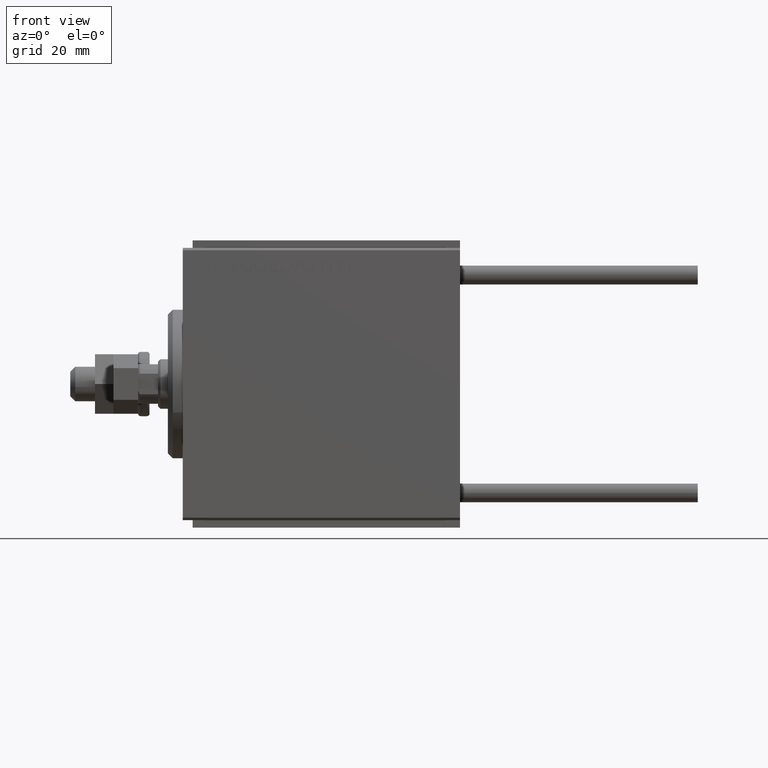
[diagram: clean part render]
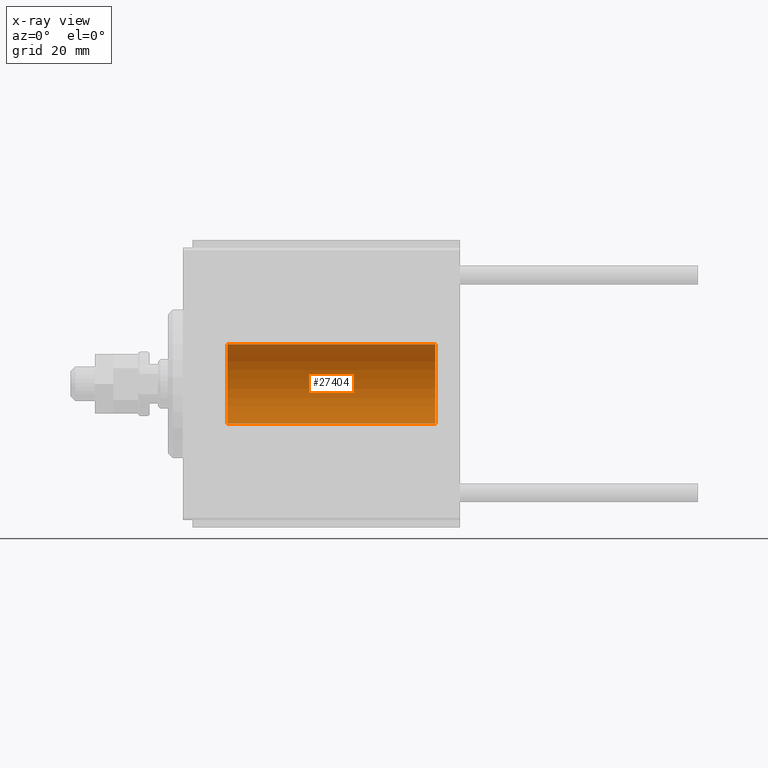
[diagram: x-ray — body ghosted, one internal face saturated and labeled with its STEP entity id]
A machine part, front view, then the same camera in x-ray: the body is ghosted and one INTERNAL B-rep face — a face not visible from any outside direction — is saturated and labeled: STEP entity #27404.
In plain terms, the highlighted cylindrical surface (partial cylindrical patch) has radius 8 mm, axis along (-1, -0, -0).
Its self-contained STEP definition (entity closure, byte-faithful):
#140 = DIRECTION ( 'NONE',  ( -1.000000000000000000, -0.000000000000000000, -0.000000000000000000 ) ) ;
#1160 = DIRECTION ( 'NONE',  ( -1.000000000000000000, 0.000000000000000000, 0.000000000000000000 ) ) ;
#1403 = DIRECTION ( 'NONE',  ( -1.000000000000000000, -0.000000000000000000, -0.000000000000000000 ) ) ;
#2342 = CARTESIAN_POINT ( 'NONE',  ( 51.00000000000000000, 0.000000000000000000, 0.000000000000000000 ) ) ;
#2371 = VERTEX_POINT ( 'NONE', #39339 ) ;
#3090 = VERTEX_POINT ( 'NONE', #7339 ) ;
#7339 = CARTESIAN_POINT ( 'NONE',  ( 51.00000000000000000, 0.000000000000000000, 7.999999999999998224 ) ) ;
#9039 = ORIENTED_EDGE ( 'NONE', *, *, #11914, .T. ) ;
#10203 = DIRECTION ( 'NONE',  ( 0.000000000000000000, 0.000000000000000000, 1.000000000000000000 ) ) ;
#11914 = EDGE_CURVE ( 'NONE', #3090, #31441, #43828, .T. ) ;
#13249 = ORIENTED_EDGE ( 'NONE', *, *, #36979, .F. ) ;
#13821 = VECTOR ( 'NONE', #1403, 1000.000000000000000 ) ;
#14219 = CIRCLE ( 'NONE', #36945, 7.999999999999998224 ) ;
#16156 = DIRECTION ( 'NONE',  ( -1.000000000000000000, -0.000000000000000000, -0.000000000000000000 ) ) ;
#16641 = DIRECTION ( 'NONE',  ( 0.000000000000000000, 0.000000000000000000, 1.000000000000000000 ) ) ;
#17421 = EDGE_LOOP ( 'NONE', ( #25514, #13249, #9039, #25718 ) ) ;
#18927 = FACE_OUTER_BOUND ( 'NONE', #17421, .T. ) ;
#19958 = LINE ( 'NONE', #35453, #38657 ) ;
#21625 = DIRECTION ( 'NONE',  ( -1.000000000000000000, 0.000000000000000000, 0.000000000000000000 ) ) ;
#23060 = EDGE_CURVE ( 'NONE', #31441, #2371, #38440, .T. ) ;
#23865 = CARTESIAN_POINT ( 'NONE',  ( 9.000000000000001776, 0.000000000000000000, 7.999999999999998224 ) ) ;
#25514 = ORIENTED_EDGE ( 'NONE', *, *, #39747, .F. ) ;
#25718 = ORIENTED_EDGE ( 'NONE', *, *, #23060, .T. ) ;
#27404 = ADVANCED_FACE ( 'NONE', ( #18927 ), #34415, .F. ) ;
#27535 = DIRECTION ( 'NONE',  ( 0.000000000000000000, 0.000000000000000000, 1.000000000000000000 ) ) ;
#30300 = AXIS2_PLACEMENT_3D ( 'NONE', #39772, #1160, #16641 ) ;
#31441 = VERTEX_POINT ( 'NONE', #23865 ) ;
#33712 = AXIS2_PLACEMENT_3D ( 'NONE', #49933, #140, #27535 ) ;
#34415 = CYLINDRICAL_SURFACE ( 'NONE', #33712, 7.999999999999998224 ) ;
#35453 = CARTESIAN_POINT ( 'NONE',  ( 51.00000000000000000, 9.797174393178823685E-16, -7.999999999999998224 ) ) ;
#36945 = AXIS2_PLACEMENT_3D ( 'NONE', #2342, #21625, #10203 ) ;
#36979 = EDGE_CURVE ( 'NONE', #3090, #38699, #14219, .T. ) ;
#38440 = CIRCLE ( 'NONE', #30300, 7.999999999999998224 ) ;
#38657 = VECTOR ( 'NONE', #16156, 1000.000000000000000 ) ;
#38699 = VERTEX_POINT ( 'NONE', #40532 ) ;
#39339 = CARTESIAN_POINT ( 'NONE',  ( 9.000000000000001776, 9.797174393178823685E-16, -7.999999999999998224 ) ) ;
#39530 = CARTESIAN_POINT ( 'NONE',  ( 51.00000000000000000, 0.000000000000000000, 7.999999999999998224 ) ) ;
#39747 = EDGE_CURVE ( 'NONE', #38699, #2371, #19958, .T. ) ;
#39772 = CARTESIAN_POINT ( 'NONE',  ( 9.000000000000001776, 0.000000000000000000, 0.000000000000000000 ) ) ;
#40532 = CARTESIAN_POINT ( 'NONE',  ( 51.00000000000000000, 9.797174393178823685E-16, -7.999999999999998224 ) ) ;
#43828 = LINE ( 'NONE', #39530, #13821 ) ;
#49933 = CARTESIAN_POINT ( 'NONE',  ( 51.00000000000000000, 0.000000000000000000, 0.000000000000000000 ) ) ;